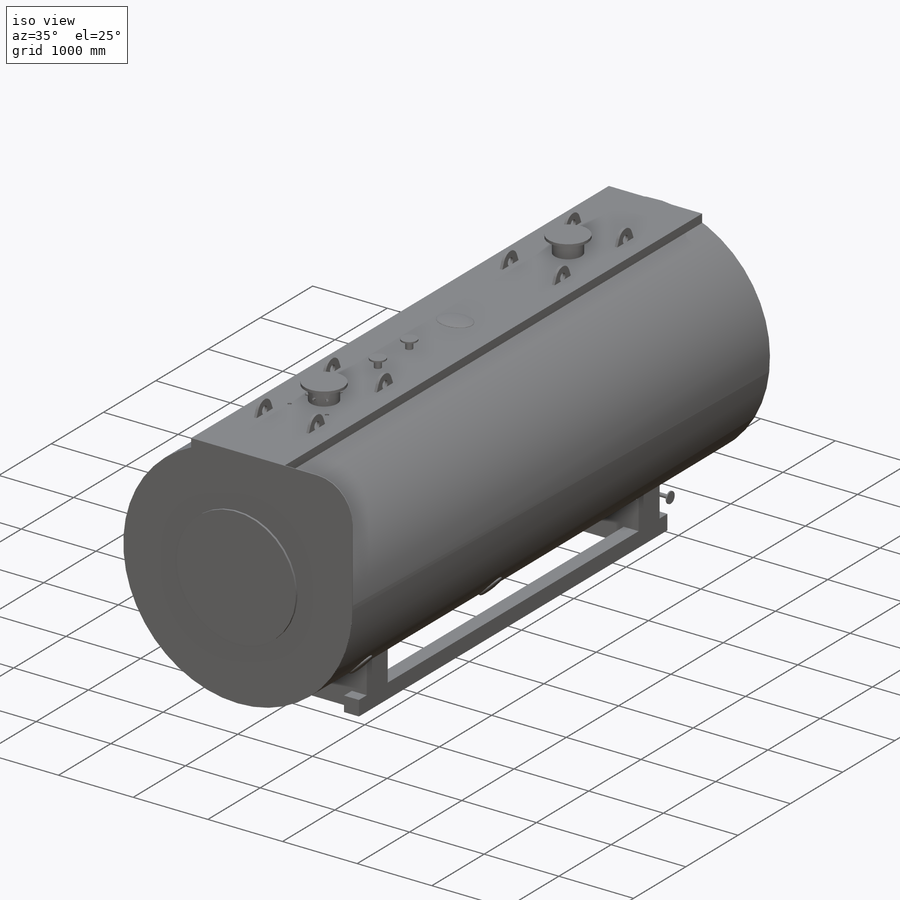
[diagram: iso view]
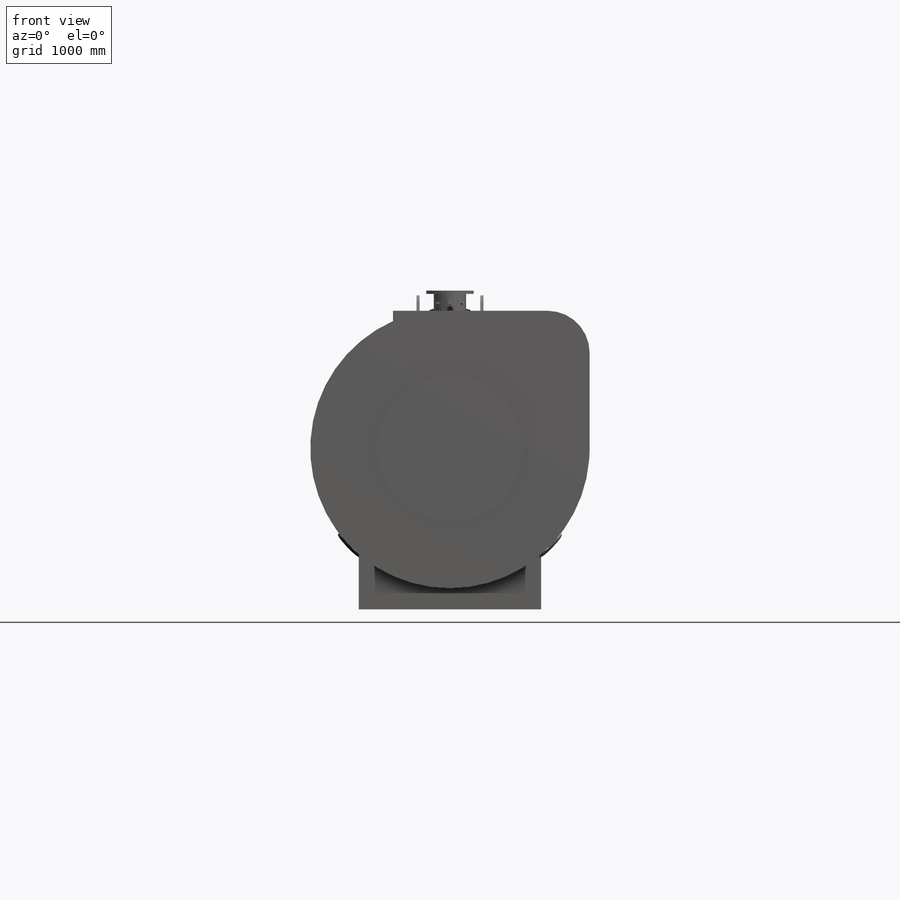
[diagram: front view]
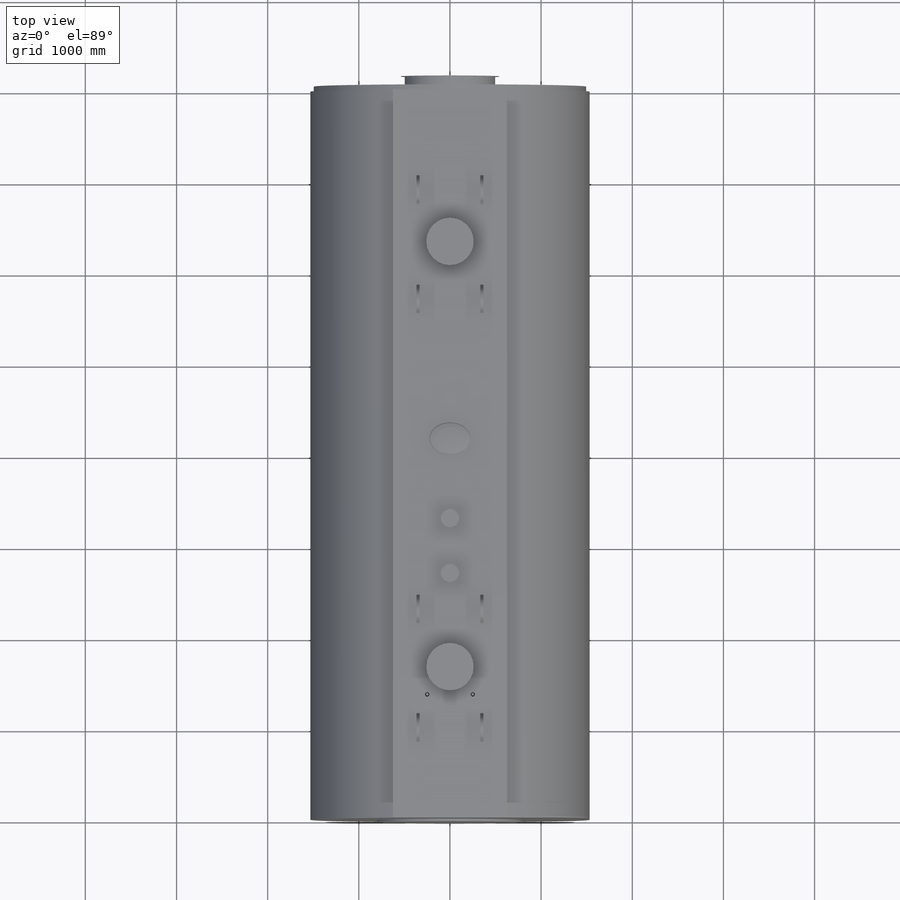
[diagram: top view]
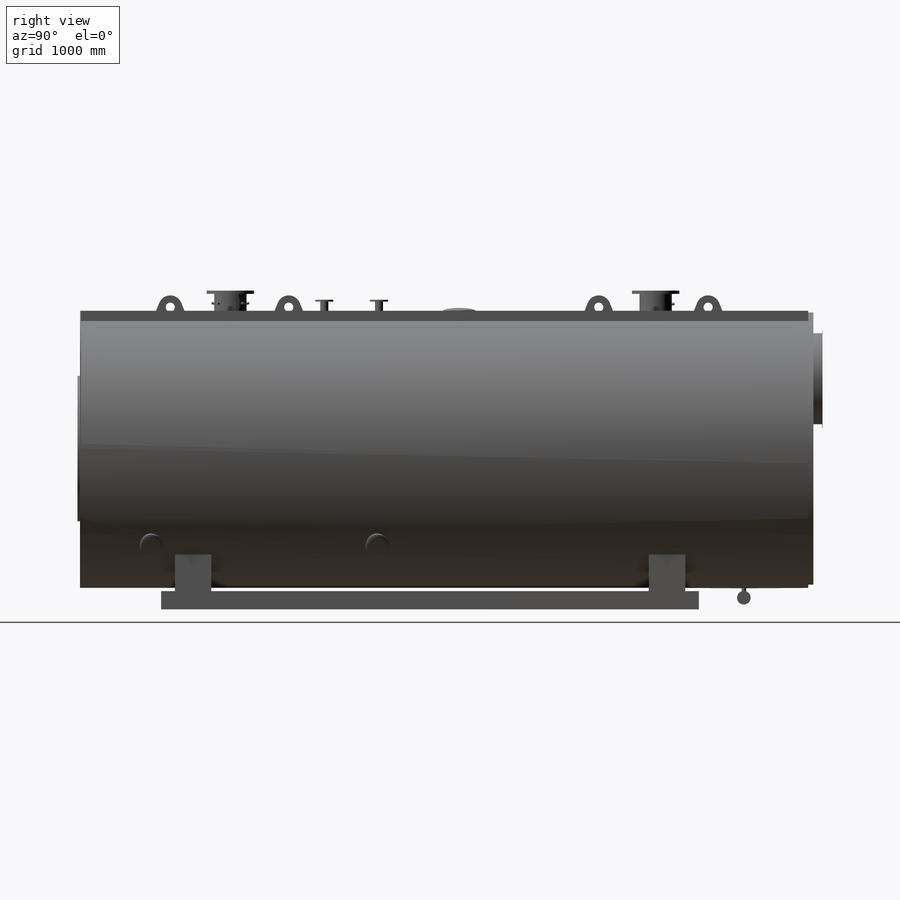
[diagram: right view]
SOLIDWORKS PART (.sldprt)
format: sldprt  version: not decoded by parser v0  size: 865,792 bytes
history: native  units: mm
features: sketch x28, extrude x17, plane x11, revolve x3, mirror x2, material x1, cut_extrude x1, pattern_circular x1, dome x1, sweep x1 + 2 further entries (+16 scaffold rows collapsed; 6 parser-record rows omitted)
feature tree (90):
  scaffold x16  (default folders/planes/origin — collapsed)
  material  "Materiale <non specificato>"
  plane  "Piano frontale"
  plane  "Piano superiore"
  plane  "Piano destro"
  "Asse Y"
  "Asse Z"
  sketch  "Schizzo1"  dims[D1=3065.0mm D4=462.0mm D2=1512.0mm D3=625.0mm]
  extrude  "piastra anteriore"  Depth=10mm
  sketch  "Schizzo2"  dims[c1.D1=1250.0mm c2.D1=7970.0mm c2.D5=50.0mm c2.D6=1.0mm c2.D7=5.0mm]
  sketch  "Schizzo3"  dims[D1=0.0mm]
  extrude  "piastra posteriore"  Depth=10mm
  parser-record x6  (decoder bookkeeping rows leaked as tree rows — omitted from the tree; the rows remain in map.json)
  plane  "Piano1"  Offset=1764mm
  sketch  "Schizzo4"  dims[D1=2000.0mm D2=5900.0mm D3=890.0mm]
  extrude  "Estrusione-Sottile2"  Depth=200mm
  mirror  "Specchia3"
  sketch  "Schizzo5"  dims[D1=400.0mm D2=350.0mm]
  extrude  "Estrusione-Estrusione3"  [1 undecoded]
  sketch  "Schizzo6"  dims[D1=1597.0mm]
  extrude  "piastra bruciatore"  Depth=28mm
  sketch  "Schizzo9"  dims[D1=2988.0mm D2=710.0mm D3=1514.0mm]
  extrude  "camera fumo"  Depth=56mm
  sketch  "Schizzo10"  dims[D1=2530.0mm D2=1080.0mm D3=998.0mm D4=5.0mm D5=100.0mm]
  revolve  "attacco camino"  Angle=360deg
  sketch  "Schizzo11"  dims[c1.D1=355.6mm c1.D2=88.9mm c1.D3=355.6mm c1.D4=26.7mm c1.D5=355.6mm c1.D6=88.9mm c1.D7=88.9mm c1.D8=355.6mm c2.D3=300.0mm c2.D5=1650.0mm c2.D6=1030.0mm c2.D7=600.0mm c2.D8=3036.0mm c2.D9=500.0mm]
  extrude  "Estrusione-Estrusione6"  Depth=1732.5mm
  extrude  "Estrusione-Estrusione7"  [1 undecoded]
  sketch  "Schizzo11<3>"  dims[D1=1632.5mm]
  extrude  "Estrusione-Estrusione8"  [1 undecoded]
  sketch  "Schizzo11<4>"  dims[D1=1500.0mm]
  sketch  "Schizzo12"  dims[D1=10.0mm D2=10.0mm]
  cut_extrude  "Taglio-Estrusione1"  Depth=250mm
  sketch  "Schizzo13"  dims[D1=520.0mm]
  extrude  "Estrusione-Estrusione9"  Depth=35mm
  sketch  "Schizzo14"  dims[D1=200.0mm]
  extrude  "Estrusione-Estrusione10"  Depth=20mm
  sketch  "Schizzo15"  dims[c1.D1=185.5mm c2.D1=75.0deg c2.D2=142.0mm c2.D3=50.0mm c2.D4=26.7mm c2.D5=25.0mm]
  revolve  "Rivoluzione2"  Angle=360deg
  pattern_circular  "RipetizioneCircolare1"  Count=8 Angle=360deg
  sketch  "Schizzo16"  dims[c1.D1=~158.885258mm c2.D1=75.0deg c2.D2=150.0mm c2.D3=26.7mm c2.D4=50.0mm c2.D5=25.0mm]
  revolve  "Rivoluzione3"  Angle=360deg
  sketch  "Schizzo17"  dims[D1=880.0mm D2=452.0mm D3=352.0mm]
  extrude  "Estrusione-Estrusione11"  Depth=1mm
  dome  "Cupola1"
  sketch  "Schizzo3D1"  dims[c1.D1=~1304.901084mm c2.D1=~31.626422deg c2.D5=46.0deg c2.D2=2000.0mm c2.D3=1000.0mm c3.D2=780.0mm c3.D3=2480.0mm c3.D4=2710.0mm c3.D1=~1236.248346mm c4.D1=46.0deg]
  plane  "Piano2"
  plane  "Piano3"
  plane  "Piano4"
  plane  "Piano5"
  plane  "Piano6"
  plane  "Piano7"
  sketch  "Schizzo18"  dims[D1=252.0mm D2=352.0mm]
  extrude  "Estrusione-Estrusione12"  [1 undecoded]
  sketch  "Schizzo20"  dims[D1=252.0mm D2=352.0mm]
  extrude  "Estrusione-Estrusione13"  [1 undecoded]
  sketch  "Schizzo21"  dims[D1=252.0mm D2=352.0mm]
  extrude  "Estrusione-Estrusione14"  [1 undecoded]
  sketch  "Cupola2"  dims[D1=30.0mm]
  sketch  "Cupola3"  dims[D1=30.0mm]
  sketch  "Cupola4"  dims[D1=30.0mm]
  plane  "Piano8"  Offset=707mm
  sketch  "Schizzo22"  dims[D3=50.0mm D1=127.6mm D2=700.0mm]
  sketch  "Schizzo24"  dims[D1=48.3mm]
  sweep  "Sweep1"
  sketch  "Schizzo23"  dims[D1=150.0mm]
  extrude  "Estrusione-Estrusione15"  Depth=16mm
  sketch  "Schizzo25"  dims[c1.D2=100.0mm c1.D4=~91.000104mm c1.D5=100.0mm c1.D7=130.0mm c1.D11=100.0mm c1.D15=130.0mm c1.D1=100.0mm c1.D3=320.0mm c2.D4=280.0mm c2.D5=150.0mm c2.D6=1401.0mm c2.D7=990.0mm c2.D9=1300.0mm c2.D10=100.0mm c2.D12=320.0mm c2.D13=280.0mm c2.D14=150.0mm c2.D15=3401.0mm c2.D17=1200.0mm c2.D8=2.0 c2.D16=2.0]
  extrude  "Estrusione-Estrusione16"  Depth=35mm
  mirror  "Specchia4"
decode coverage: 44 of 54 modeling features carry decoded parameters; 2 rows unclassified (native names shown)
note: ~ marks probable driven/reference dimensions
note: 6 parameter values undecoded
summary: no parameter record found for 6 features
note: suppression state not decoded; provenance and decode notes live in map.json
